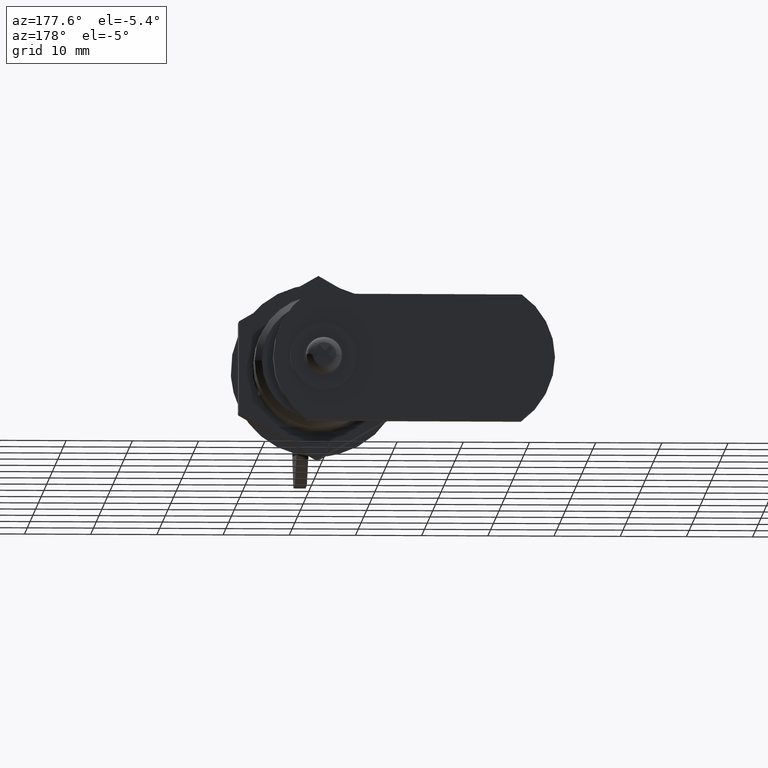
[diagram: clean part render]
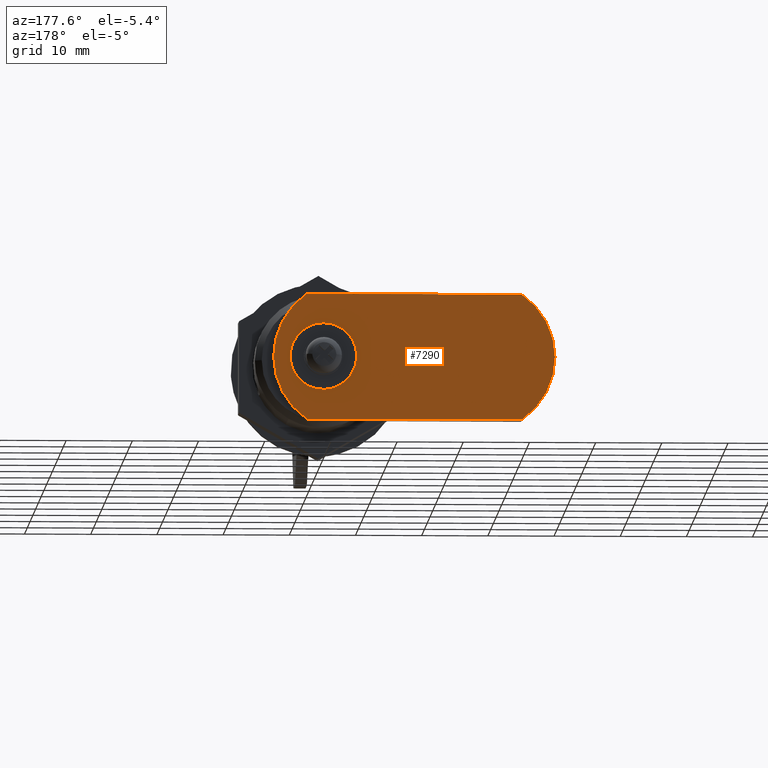
[diagram: same view with one face highlighted and labeled with its STEP entity id]
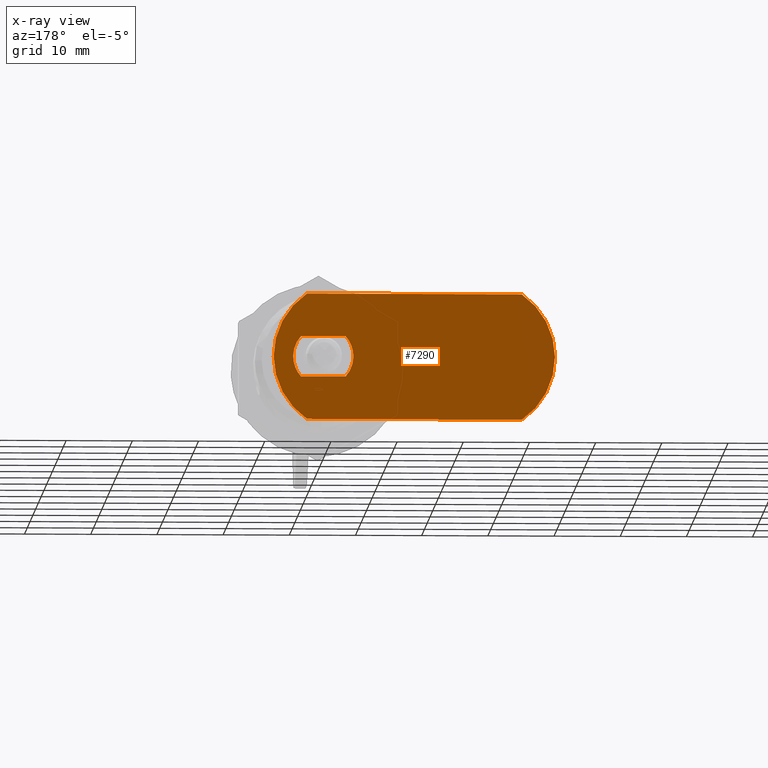
[diagram: x-ray of the same camera — body ghosted, the highlighted face saturated]
A machine part, auxiliary view. The second image highlights one B-rep face of the part: STEP entity #7290.
The next image is the same camera in x-ray: the body ghosted, the highlighted face saturated — about 0% of this face is hidden behind the body in this view.
In plain terms, the highlighted face is a freeform B-spline surface patch.
Its self-contained STEP definition (entity closure, byte-faithful):
#6937=CARTESIAN_POINT('',(22.700021000000000,3.376388603226825,3.050000000000000));
#6938=VERTEX_POINT('',#6937);
#6944=CARTESIAN_POINT('',(22.700021000000000,-3.376388603226825,3.050000000000000));
#6945=VERTEX_POINT('',#6944);
#6946=CARTESIAN_POINT('',(22.700021000000000,3.376388603226825,3.050000000000000));
#6947=CARTESIAN_POINT('',(22.700021000000000,-3.376388603226825,3.050000000000000));
#6948=QUASI_UNIFORM_CURVE('',1,(#6946,#6947),.UNSPECIFIED.,.F.,.U.);
#6949=EDGE_CURVE('',#6938,#6945,#6948,.T.);
#6988=CARTESIAN_POINT('',(22.700021000000000,3.376388603226825,-3.050000000000000));
#6989=VERTEX_POINT('',#6988);
#6995=CARTESIAN_POINT('',(22.700021000000000,3.376388603226825,-3.050000000000002));
#6996=CARTESIAN_POINT('',(22.700021000000010,6.131551320903806,-2.602085E-015));
#6997=CARTESIAN_POINT('',(22.700021000000000,3.376388603226828,3.049999999999999));
#7005=(BOUNDED_CURVE()B_SPLINE_CURVE(2,(#6995,#6996,#6997),.UNSPECIFIED.,.F.,.U.)CURVE()GEOMETRIC_REPRESENTATION_ITEM()QUASI_UNIFORM_CURVE()RATIONAL_B_SPLINE_CURVE((1.0,0.742063429280621,1.0))REPRESENTATION_ITEM(''));
#7006=EDGE_CURVE('',#6989,#6938,#7005,.T.);
#7024=CARTESIAN_POINT('',(22.700021000000000,-3.376388603226825,-3.050000000000000));
#7025=VERTEX_POINT('',#7024);
#7031=CARTESIAN_POINT('',(22.700021000000000,-3.376388603226825,-3.050000000000000));
#7032=CARTESIAN_POINT('',(22.700021000000000,3.376388603226825,-3.050000000000000));
#7033=QUASI_UNIFORM_CURVE('',1,(#7031,#7032),.UNSPECIFIED.,.F.,.U.);
#7034=EDGE_CURVE('',#7025,#6989,#7033,.T.);
#7068=CARTESIAN_POINT('',(22.700021000000000,-3.376388603226827,3.050000000000000));
#7069=CARTESIAN_POINT('',(22.700021000000000,-6.131551320903805,-8.673617E-016));
#7070=CARTESIAN_POINT('',(22.700021000000000,-3.376388603226825,-3.050000000000001));
#7078=(BOUNDED_CURVE()B_SPLINE_CURVE(2,(#7068,#7069,#7070),.UNSPECIFIED.,.F.,.U.)CURVE()GEOMETRIC_REPRESENTATION_ITEM()QUASI_UNIFORM_CURVE()RATIONAL_B_SPLINE_CURVE((1.0,0.742063429280621,1.0))REPRESENTATION_ITEM(''));
#7079=EDGE_CURVE('',#6945,#7025,#7078,.T.);
#7118=CARTESIAN_POINT('',(22.700021000000000,-2.480740698407570,-9.500000000000199));
#7119=VERTEX_POINT('',#7118);
#7125=CARTESIAN_POINT('',(22.700021000000000,-2.480752425447045,9.499992000000001));
#7126=VERTEX_POINT('',#7125);
#7127=CARTESIAN_POINT('',(22.700021000000000,-2.480752425447045,9.499992000000001));
#7128=CARTESIAN_POINT('',(22.700021000000003,-7.500003750146698,6.075933832742968));
#7129=CARTESIAN_POINT('',(22.700021000000000,-7.499999999997809,-0.000007097947909));
#7130=CARTESIAN_POINT('',(22.700021000000003,-7.499996249848919,-6.075948028638786));
#7131=CARTESIAN_POINT('',(22.700021000000000,-2.480740698407570,-9.500000000000197));
#7139=(BOUNDED_CURVE()B_SPLINE_CURVE(2,(#7127,#7128,#7129,#7130,#7131),.UNSPECIFIED.,.F.,.U.)B_SPLINE_CURVE_WITH_KNOTS((3,2,3),(0.0,0.500000000000000,1.0),.UNSPECIFIED.)CURVE()GEOMETRIC_REPRESENTATION_ITEM()RATIONAL_B_SPLINE_CURVE((1.0,0.884178482914545,1.0,0.884178482914545,1.0))REPRESENTATION_ITEM(''));
#7140=EDGE_CURVE('',#7126,#7119,#7139,.T.);
#7162=CARTESIAN_POINT('',(22.700021000000000,29.980740698407551,-9.500000000000199));
#7163=VERTEX_POINT('',#7162);
#7169=CARTESIAN_POINT('',(22.700021000000000,29.980740698407551,-9.500000000000199));
#7170=CARTESIAN_POINT('',(22.700021000000000,-2.480740698407570,-9.500000000000199));
#7171=QUASI_UNIFORM_CURVE('',1,(#7169,#7170),.UNSPECIFIED.,.F.,.U.);
#7172=EDGE_CURVE('',#7163,#7119,#7171,.T.);
#7209=CARTESIAN_POINT('',(22.700021000000000,29.980752425447051,9.499992000000001));
#7210=VERTEX_POINT('',#7209);
#7216=CARTESIAN_POINT('',(22.700021000000000,29.980740698407551,-9.500000000000210));
#7217=CARTESIAN_POINT('',(22.700021000000000,34.999996249848927,-6.075948028638805));
#7218=CARTESIAN_POINT('',(22.700021000000000,34.999999999997812,-0.000007097947915));
#7219=CARTESIAN_POINT('',(22.700021000000000,35.000003750146703,6.075933832742964));
#7220=CARTESIAN_POINT('',(22.700021000000000,29.980752425447051,9.499992000000001));
#7228=(BOUNDED_CURVE()B_SPLINE_CURVE(2,(#7216,#7217,#7218,#7219,#7220),.UNSPECIFIED.,.F.,.U.)B_SPLINE_CURVE_WITH_KNOTS((3,2,3),(0.0,0.500000000000000,1.0),.UNSPECIFIED.)CURVE()GEOMETRIC_REPRESENTATION_ITEM()RATIONAL_B_SPLINE_CURVE((1.0,0.884178482914544,1.0,0.884178482914544,1.0))REPRESENTATION_ITEM(''));
#7229=EDGE_CURVE('',#7163,#7210,#7228,.T.);
#7246=CARTESIAN_POINT('',(22.700021000000000,-2.480752425447045,9.499992000000001));
#7247=CARTESIAN_POINT('',(22.700021000000000,29.980752425447051,9.499992000000001));
#7248=QUASI_UNIFORM_CURVE('',1,(#7246,#7247),.UNSPECIFIED.,.F.,.U.);
#7249=EDGE_CURVE('',#7126,#7210,#7248,.T.);
#7273=CARTESIAN_POINT('',(22.700021000000000,-9.622874917623747,10.449042098649331));
#7274=CARTESIAN_POINT('',(22.700021000000000,37.122876057563687,10.449042098649331));
#7275=CARTESIAN_POINT('',(22.700021000000000,-9.622874917623747,-10.449050098649529));
#7276=CARTESIAN_POINT('',(22.700021000000000,37.122876057563687,-10.449050098649529));
#7277=B_SPLINE_SURFACE_WITH_KNOTS('',1,1,((#7273,#7275),(#7274,#7276)),.UNSPECIFIED.,.F.,.F.,.U.,(2,2),(2,2),(0.0,46.745750975187427),(0.0,20.898092197298869),.UNSPECIFIED.);
#7278=ORIENTED_EDGE('',*,*,#7249,.F.);
#7279=ORIENTED_EDGE('',*,*,#7140,.T.);
#7280=ORIENTED_EDGE('',*,*,#7172,.F.);
#7281=ORIENTED_EDGE('',*,*,#7229,.T.);
#7282=EDGE_LOOP('',(#7278,#7279,#7280,#7281));
#7283=FACE_OUTER_BOUND('',#7282,.T.);
#7284=ORIENTED_EDGE('',*,*,#7034,.F.);
#7285=ORIENTED_EDGE('',*,*,#7079,.F.);
#7286=ORIENTED_EDGE('',*,*,#6949,.F.);
#7287=ORIENTED_EDGE('',*,*,#7006,.F.);
#7288=EDGE_LOOP('',(#7284,#7285,#7286,#7287));
#7289=FACE_BOUND('',#7288,.T.);
#7290=ADVANCED_FACE('',(#7283,#7289),#7277,.F.);